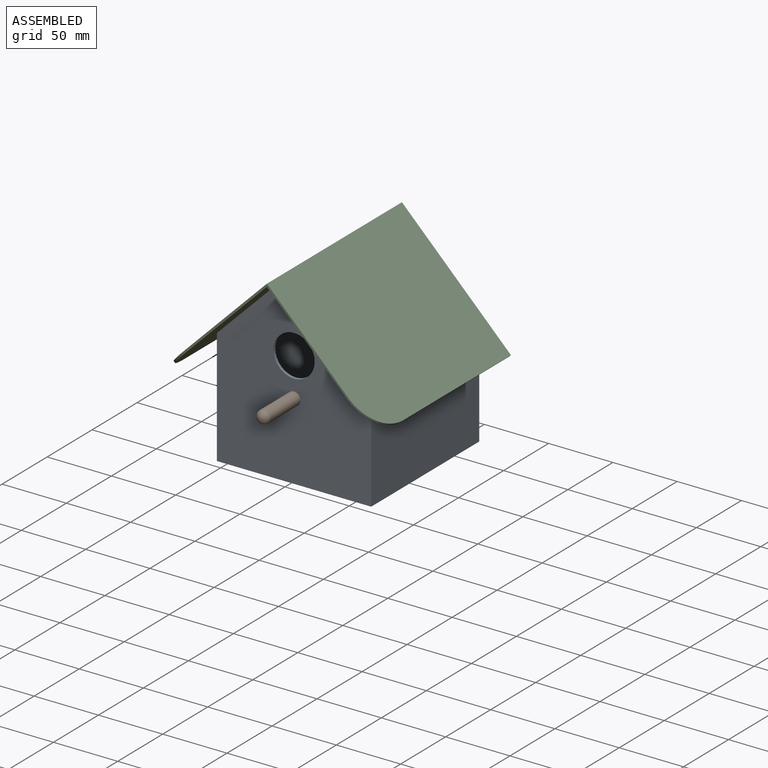
[diagram: assembled view]
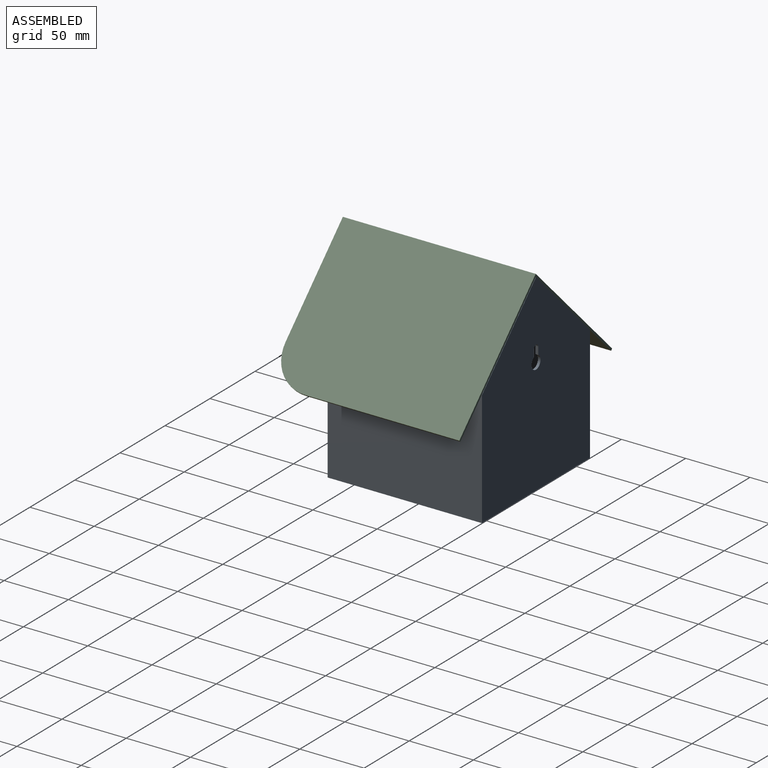
[diagram: assembled view, second angle]
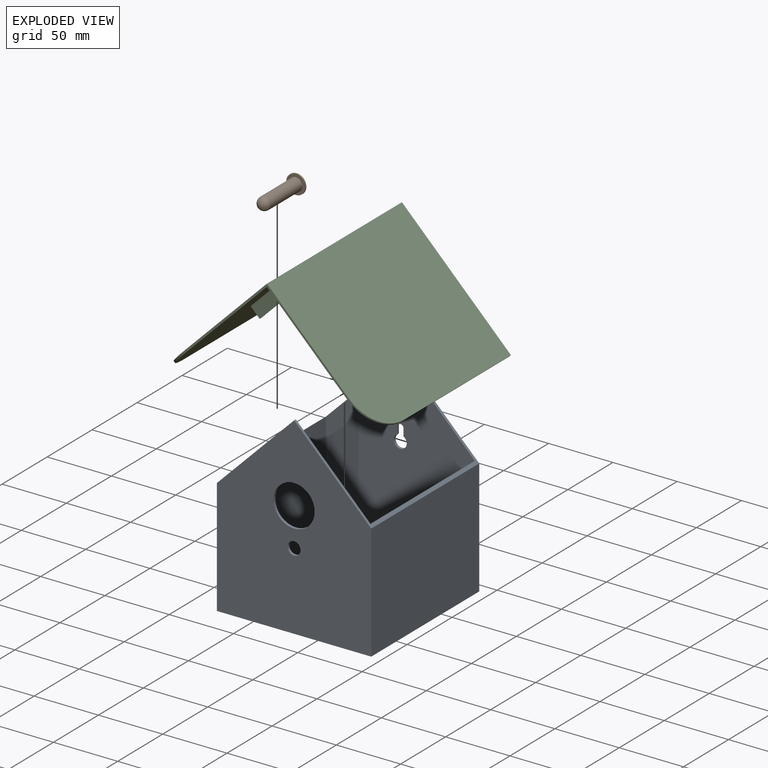
[diagram: exploded view]
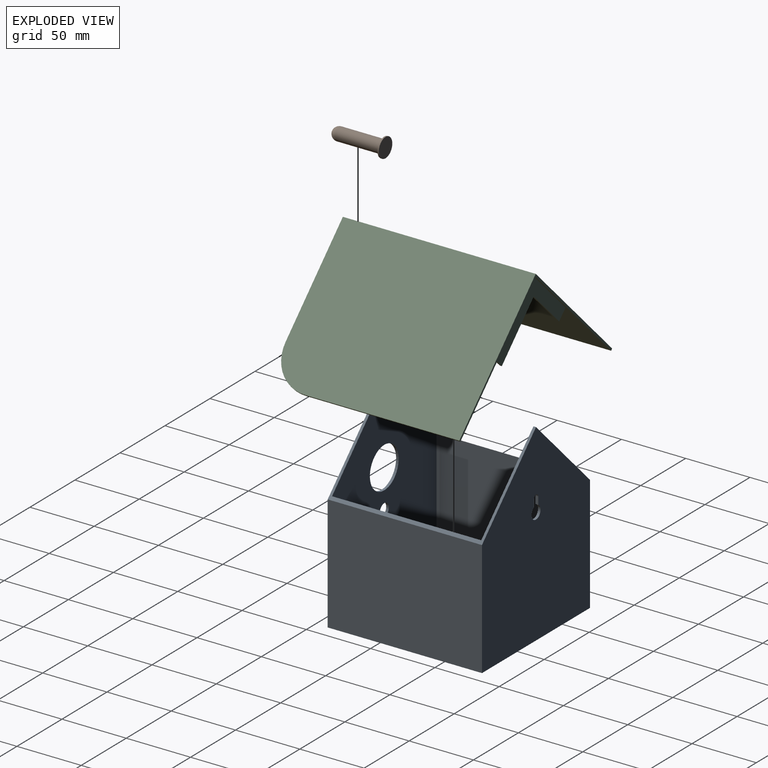
[diagram: exploded view, second angle]
ASSEMBLY  parts=3 mates=2
PART A: 23 faces, bbox 120x120x150 mm
  f0: plane 120x60mm, normal (0.71,0,0.71), area 667.5mm2, adj f2,f3,f4,f6,f8,f9,f10
  f1: plane 120x90mm, normal (-1,0,0), area 10800mm2, adj f2,f3,f5,f6
  f2: plane 150x120mm, normal (0,1,0), area 14285.6mm2, adj f0,f1,f4,f5,f6,f19,f20,f21
  f3: plane 150x120mm, normal (0,-1,0), area 13517.2mm2, adj f0,f1,f4,f5,f6,f12,f13
  f4: plane 120x90mm, normal (1,0,0), area 10800mm2, adj f0,f2,f3,f5
  f5: plane 120x120mm, normal (0,0,-1), area 14258.6mm2, adj f1,f2,f3,f4,f14,f15,f16,f17
  f6: plane 120x60mm, normal (-0.71,0,0.71), area 667.5mm2, adj f0,f1,f2,f3,f7,f8,f9
  f7: plane 116x90mm, normal (1,0,0), area 10440mm2, adj f6,f8,f9,f11
  f8: plane 148x116mm, normal (0,-1,0), area 13689.6mm2, adj f0,f6,f7,f10,f11,f19,f20,f21
  f9: plane 148x116mm, normal (0,1,0), area 12921.2mm2, adj f0,f6,f7,f10,f11,f12,f13
  f10: plane 116x90mm, normal (-1,0,0), area 10440mm2, adj f0,f8,f9,f11
  f11: plane 116x116mm, normal (0,0,1), area 13314.6mm2, adj f7,f8,f9,f10,f14,f15,f16,f17
  f12: cylinder r=5mm len=10mm, axis (0,-1,0), area 62.8mm2, adj f3,f9
  f13: cylinder r=16mm len=32mm, axis (0,-1,0), area 201.1mm2, adj f3,f9
  f14: cylinder r=3mm len=6mm, axis (0,0,-1), area 37.7mm2, adj f5,f11
  f15: cylinder r=3mm len=6mm, axis (0,0,-1), area 37.7mm2, adj f5,f11
  f16: cylinder r=3mm len=6mm, axis (0,0,-1), area 37.7mm2, adj f5,f11
  f17: cylinder r=3mm len=6mm, axis (0,0,-1), area 37.7mm2, adj f5,f11
  f18: cylinder r=3mm len=6mm, axis (0,0,-1), area 37.7mm2, adj f5,f11
  f19: cylinder r=5mm len=10mm, axis (0,1,0), area 52.4mm2, adj f2,f8,f20,f21
  f20: plane 5.67x2mm, normal (1,0,0), area 11.3mm2, adj f2,f8,f19,f22
  f21: plane 5.67x2mm, normal (-1,0,0), area 11.3mm2, adj f2,f8,f19,f22
  f22: cylinder r=2.5mm len=5mm, axis (0,1,0), area 15.7mm2, adj f2,f8,f20,f21
PART B: 5 faces, bbox 15x15x41 mm
  f0: cylinder r=7.5mm len=15mm, axis (0,0,-1), area 47.1mm2, adj f1,f2
  f1: plane 15x15mm, normal (0,0,1), area 98.2mm2, adj f0,f3
  f2: plane 15x15mm, normal (0,0,-1), area 176.7mm2, adj f0
  f3: cylinder r=5mm len=35mm, axis (0,0,-1), area 1099.6mm2, adj f1,f4
  f4: sphere r=5mm, area 157.1mm2, adj f3
PART C: 22 faces, bbox 120x120x150 mm
  f0: plane 150x118.4mm, normal (-1,0,0), area 17374.9mm2, adj f3,f4,f6,f7,f8,f9,f12,f14
  f1: plane 150x120mm, normal (0,1,0), area 17806.9mm2, adj f2,f5,f6,f7,f21
  f2: plane 120x1.6mm, normal (-1,0,0), area 192mm2, adj f1,f3,f7,f21
  f3: plane 150x118.4mm, normal (0,-1,0), area 17406.9mm2, adj f0,f2,f6,f7,f8,f9,f10,f14
  f4: plane 120x1.6mm, normal (0,-1,0), area 192mm2, adj f0,f5,f7,f20
  f5: plane 150x120mm, normal (1,0,0), area 17806.9mm2, adj f1,f4,f6,f7,f20
  f6: plane 90x90mm, normal (0,0,1), area 285.4mm2, adj f0,f1,f3,f5,f20,f21
  f7: plane 120x120mm, normal (0,0,-1), area 381.4mm2, adj f0,f1,f2,f3,f4,f5
  f8: plane 60x50mm, normal (0,0,-1), area 1000mm2, adj f0,f3,f10,f11,f12,f13
  f9: plane 60x50mm, normal (0,0,1), area 1000mm2, adj f0,f3,f10,f11,f12,f13
  f10: plane 10x1.6mm, normal (-1,0,0), area 16mm2, adj f3,f8,f9,f11
  f11: plane 40x1.6mm, normal (0,-1,0), area 64mm2, adj f8,f9,f10,f13
  f12: plane 10x1.6mm, normal (0,-1,0), area 16mm2, adj f0,f8,f9,f13
  f13: plane 50x1.6mm, normal (-1,0,0), area 80mm2, adj f8,f9,f11,f12
  f14: plane 60x50mm, normal (0,0,1), area 1000mm2, adj f0,f3,f15,f17,f18,f19
  f15: plane 10x1.6mm, normal (-1,0,0), area 16mm2, adj f3,f14,f16,f17
  f16: plane 60x50mm, normal (0,0,-1), area 1000mm2, adj f0,f3,f15,f17,f18,f19
  f17: plane 40x1.6mm, normal (0,-1,0), area 64mm2, adj f14,f15,f16,f19
  f18: plane 10x1.6mm, normal (0,-1,0), area 16mm2, adj f0,f14,f16,f19
  f19: plane 50x1.6mm, normal (-1,0,0), area 80mm2, adj f14,f16,f17,f18
  f20: cylinder r=30mm len=30mm, axis (-1,0,0), area 75.4mm2, adj f0,f4,f5,f6
  f21: cylinder r=30mm len=30mm, axis (0,1,0), area 75.4mm2, adj f1,f2,f3,f6
PLACE A t=(-13.04,-125.47,38.41)mm
PLACE B rot(axis=(1,0,0),90deg) t=(-13.04,-182.47,98.41)mm
PLACE C rot(axis=(0.86,-0.36,0.36),98.4deg) t=(-13.04,-65.67,105.82)mm
MATE fastened B.f3 <-> A.f12  axis (0,-1,0) through (-13.04,-183.47,98.41)mm
MATE fastened C.f0 <-> A.f0  axis (-0.71,0,-0.71) through (-13.04,-66.47,188.41)mm
